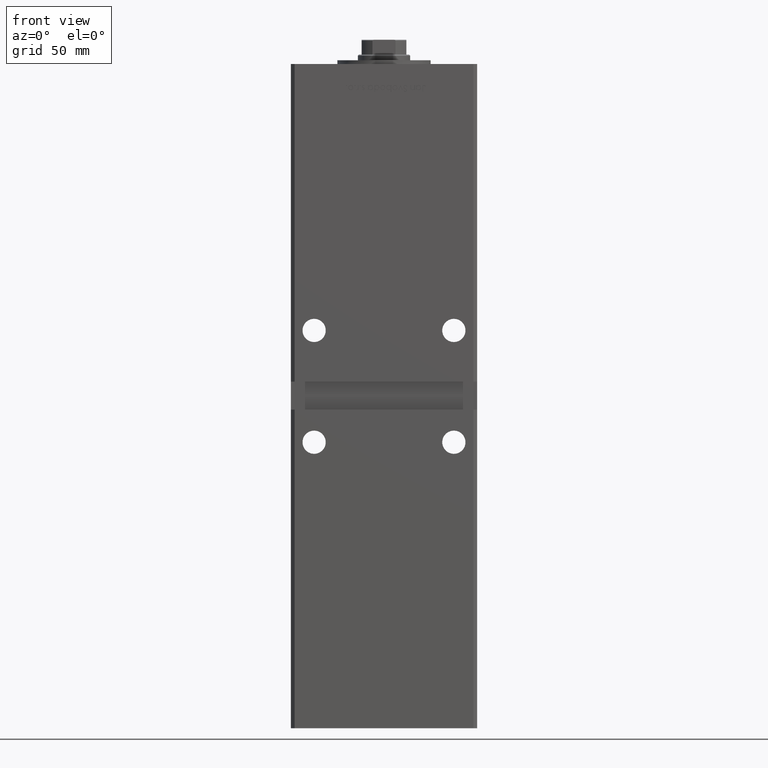
[diagram: clean part render]
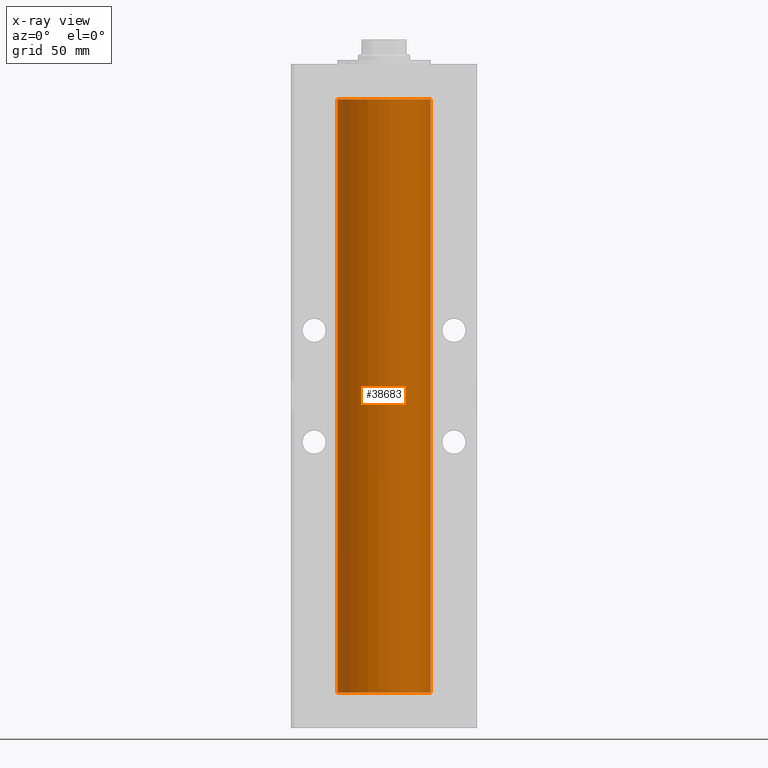
[diagram: x-ray — body ghosted, one internal face saturated and labeled with its STEP entity id]
A machine part, front view, then the same camera in x-ray: the body is ghosted and one INTERNAL B-rep face — a face not visible from any outside direction — is saturated and labeled: STEP entity #38683.
In plain terms, the highlighted cylindrical surface (partial cylindrical patch) has radius 25 mm, axis along (-0, -0, -1).
Its self-contained STEP definition (entity closure, byte-faithful):
#349 = CARTESIAN_POINT ( 'NONE',  ( 25.00000000000000000, 3.061616997868383043E-15, 318.5000000000000000 ) ) ;
#867 = LINE ( 'NONE', #17251, #46504 ) ;
#2427 = VERTEX_POINT ( 'NONE', #52689 ) ;
#2505 = VERTEX_POINT ( 'NONE', #50514 ) ;
#2536 = DIRECTION ( 'NONE',  ( -0.000000000000000000, 0.000000000000000000, 1.000000000000000000 ) ) ;
#2537 = CARTESIAN_POINT ( 'NONE',  ( 0.000000000000000000, 0.000000000000000000, 318.5000000000000000 ) ) ;
#4651 = VECTOR ( 'NONE', #36011, 1000.000000000000000 ) ;
#5696 = DIRECTION ( 'NONE',  ( -0.000000000000000000, -0.000000000000000000, -1.000000000000000000 ) ) ;
#5709 = ORIENTED_EDGE ( 'NONE', *, *, #38244, .F. ) ;
#6032 = DIRECTION ( 'NONE',  ( 1.000000000000000000, 0.000000000000000000, 0.000000000000000000 ) ) ;
#6119 = VERTEX_POINT ( 'NONE', #349 ) ;
#6254 = CARTESIAN_POINT ( 'NONE',  ( -25.00000000000000000, 0.000000000000000000, 0.000000000000000000 ) ) ;
#8217 = ORIENTED_EDGE ( 'NONE', *, *, #33590, .T. ) ;
#9874 = EDGE_CURVE ( 'NONE', #6119, #2505, #867, .T. ) ;
#10957 = CYLINDRICAL_SURFACE ( 'NONE', #48425, 25.00000000000000000 ) ;
#15788 = DIRECTION ( 'NONE',  ( -1.000000000000000000, 0.000000000000000000, 0.000000000000000000 ) ) ;
#17213 = EDGE_LOOP ( 'NONE', ( #8217, #49264, #43973, #5709 ) ) ;
#17251 = CARTESIAN_POINT ( 'NONE',  ( 25.00000000000000000, 3.061616997868383043E-15, 318.5000000000000000 ) ) ;
#19232 = CIRCLE ( 'NONE', #37228, 25.00000000000000000 ) ;
#21994 = CIRCLE ( 'NONE', #25408, 25.00000000000000000 ) ;
#25387 = EDGE_CURVE ( 'NONE', #49569, #2505, #21994, .T. ) ;
#25408 = AXIS2_PLACEMENT_3D ( 'NONE', #30493, #2536, #6032 ) ;
#27335 = CARTESIAN_POINT ( 'NONE',  ( 0.000000000000000000, 0.000000000000000000, 318.5000000000000000 ) ) ;
#30493 = CARTESIAN_POINT ( 'NONE',  ( 0.000000000000000000, 0.000000000000000000, 0.000000000000000000 ) ) ;
#33590 = EDGE_CURVE ( 'NONE', #2427, #6119, #19232, .T. ) ;
#35317 = DIRECTION ( 'NONE',  ( -0.000000000000000000, 0.000000000000000000, 1.000000000000000000 ) ) ;
#35747 = CARTESIAN_POINT ( 'NONE',  ( -25.00000000000000000, 0.000000000000000000, 318.5000000000000000 ) ) ;
#36011 = DIRECTION ( 'NONE',  ( -0.000000000000000000, -0.000000000000000000, -1.000000000000000000 ) ) ;
#37228 = AXIS2_PLACEMENT_3D ( 'NONE', #2537, #35317, #51708 ) ;
#38244 = EDGE_CURVE ( 'NONE', #2427, #49569, #43266, .T. ) ;
#38683 = ADVANCED_FACE ( 'NONE', ( #47758 ), #10957, .F. ) ;
#43266 = LINE ( 'NONE', #35747, #4651 ) ;
#43973 = ORIENTED_EDGE ( 'NONE', *, *, #25387, .F. ) ;
#46504 = VECTOR ( 'NONE', #5696, 1000.000000000000000 ) ;
#47758 = FACE_OUTER_BOUND ( 'NONE', #17213, .T. ) ;
#48425 = AXIS2_PLACEMENT_3D ( 'NONE', #27335, #48571, #15788 ) ;
#48571 = DIRECTION ( 'NONE',  ( -0.000000000000000000, -0.000000000000000000, -1.000000000000000000 ) ) ;
#49264 = ORIENTED_EDGE ( 'NONE', *, *, #9874, .T. ) ;
#49569 = VERTEX_POINT ( 'NONE', #6254 ) ;
#50514 = CARTESIAN_POINT ( 'NONE',  ( 25.00000000000000000, 3.061616997868383043E-15, 0.000000000000000000 ) ) ;
#51708 = DIRECTION ( 'NONE',  ( 1.000000000000000000, 0.000000000000000000, 0.000000000000000000 ) ) ;
#52689 = CARTESIAN_POINT ( 'NONE',  ( -25.00000000000000000, 0.000000000000000000, 318.5000000000000000 ) ) ;